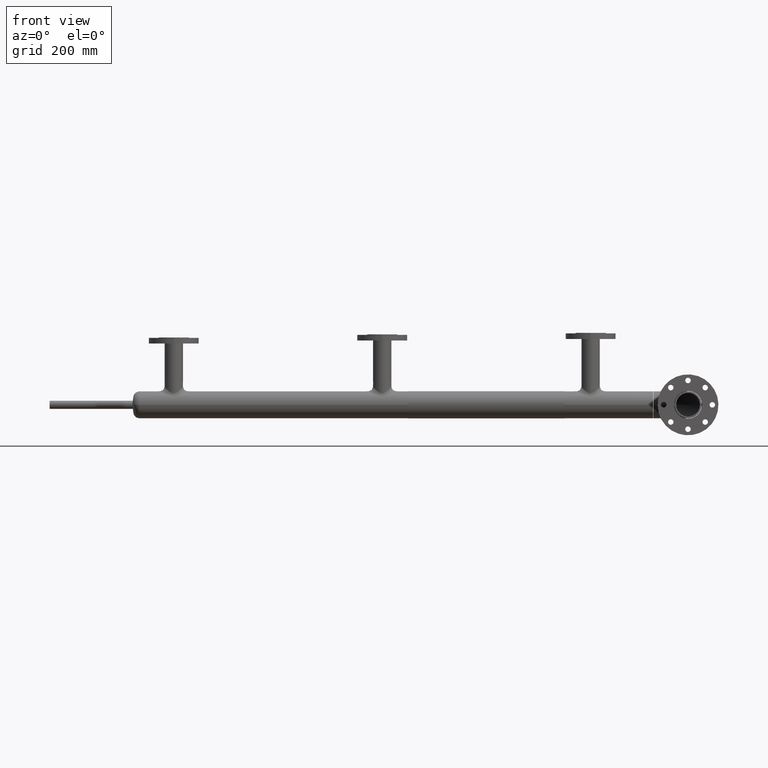
[diagram: clean part render]
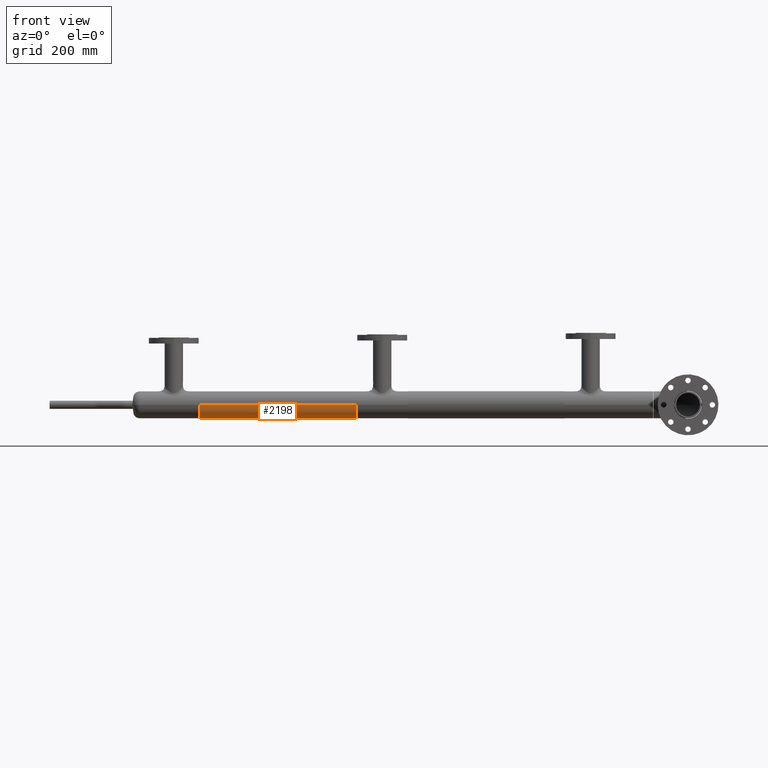
[diagram: same view with one face highlighted and labeled with its STEP entity id]
A machine part, front view. The second image highlights one B-rep face of the part: STEP entity #2198.
In plain terms, the highlighted cylindrical surface (edge-blend (fillet) strip) has radius 44.45 mm, axis along (1, 0, -0).
Its self-contained STEP definition (entity closure, byte-faithful):
#105 = CIRCLE ( 'NONE', #3872, 44.45000000000000995 ) ;
#263 = EDGE_LOOP ( 'NONE', ( #2369, #1996, #2080, #2496 ) ) ;
#697 = DIRECTION ( 'NONE',  ( -1.000000000000000000, -1.361513478024022673E-17, 5.755200308641385394E-66 ) ) ;
#840 = DIRECTION ( 'NONE',  ( 1.000000000000000000, 1.361513478024022673E-17, -5.755200308641385394E-66 ) ) ;
#842 = CARTESIAN_POINT ( 'NONE',  ( -599.3000000000000682, -44.45000000000001705, 5.443555022209986486E-15 ) ) ;
#961 = FACE_OUTER_BOUND ( 'NONE', #263, .T. ) ;
#1063 = DIRECTION ( 'NONE',  ( 1.000000000000000000, 1.361513478024022673E-17, -5.755200308641385394E-66 ) ) ;
#1206 = DIRECTION ( 'NONE',  ( 0.000000000000000000, -1.000000000000000000, 0.000000000000000000 ) ) ;
#1274 = CARTESIAN_POINT ( 'NONE',  ( -599.3000000000000682, -6.992733223131379957E-15, -2.091494006573643760E-63 ) ) ;
#1376 = EDGE_CURVE ( 'NONE', #5988, #4339, #3467, .T. ) ;
#1539 = DIRECTION ( 'NONE',  ( 0.000000000000000000, 1.000000000000000000, 0.000000000000000000 ) ) ;
#1552 = LINE ( 'NONE', #2970, #2837 ) ;
#1610 = CARTESIAN_POINT ( 'NONE',  ( -599.3000000000000682, -6.992733223131379957E-15, -2.091494006573643760E-63 ) ) ;
#1792 = EDGE_CURVE ( 'NONE', #4339, #4357, #105, .T. ) ;
#1851 = AXIS2_PLACEMENT_3D ( 'NONE', #1610, #1063, #1539 ) ;
#1892 = CARTESIAN_POINT ( 'NONE',  ( -85.70000000000000284, -44.45000000000000995, 5.443555022209986486E-15 ) ) ;
#1909 = AXIS2_PLACEMENT_3D ( 'NONE', #1274, #697, #1206 ) ;
#1996 = ORIENTED_EDGE ( 'NONE', *, *, #4942, .F. ) ;
#2080 = ORIENTED_EDGE ( 'NONE', *, *, #1376, .T. ) ;
#2198 = ADVANCED_FACE ( 'NONE', ( #961 ), #2561, .T. ) ;
#2369 = ORIENTED_EDGE ( 'NONE', *, *, #6127, .F. ) ;
#2404 = CARTESIAN_POINT ( 'NONE',  ( -599.3000000000000682, 44.45000000000000284, -2.091494006573643760E-63 ) ) ;
#2496 = ORIENTED_EDGE ( 'NONE', *, *, #1792, .T. ) ;
#2561 = CYLINDRICAL_SURFACE ( 'NONE', #1851, 44.45000000000000995 ) ;
#2798 = CARTESIAN_POINT ( 'NONE',  ( -85.70000000000000284, -1.540743955509788682E-30, -5.047364885091860149E-63 ) ) ;
#2837 = VECTOR ( 'NONE', #6152, 1000.000000000000000 ) ;
#2905 = CARTESIAN_POINT ( 'NONE',  ( -85.70000000000000284, 44.45000000000000995, -3.569429445832751550E-63 ) ) ;
#2970 = CARTESIAN_POINT ( 'NONE',  ( -599.3000000000000682, -44.45000000000001705, 5.443555022209986486E-15 ) ) ;
#3096 = CIRCLE ( 'NONE', #1909, 44.45000000000000995 ) ;
#3467 = LINE ( 'NONE', #2404, #5970 ) ;
#3872 = AXIS2_PLACEMENT_3D ( 'NONE', #2798, #5307, #4699 ) ;
#4339 = VERTEX_POINT ( 'NONE', #2905 ) ;
#4347 = CARTESIAN_POINT ( 'NONE',  ( -599.3000000000000682, 44.45000000000000284, -3.569429445832751550E-63 ) ) ;
#4357 = VERTEX_POINT ( 'NONE', #1892 ) ;
#4472 = VERTEX_POINT ( 'NONE', #842 ) ;
#4699 = DIRECTION ( 'NONE',  ( 0.000000000000000000, -1.000000000000000000, 0.000000000000000000 ) ) ;
#4942 = EDGE_CURVE ( 'NONE', #5988, #4472, #3096, .T. ) ;
#5307 = DIRECTION ( 'NONE',  ( -1.000000000000000000, -1.361513478024022673E-17, 5.755200308641385394E-66 ) ) ;
#5970 = VECTOR ( 'NONE', #840, 1000.000000000000000 ) ;
#5988 = VERTEX_POINT ( 'NONE', #4347 ) ;
#6127 = EDGE_CURVE ( 'NONE', #4472, #4357, #1552, .T. ) ;
#6152 = DIRECTION ( 'NONE',  ( 1.000000000000000000, 1.361513478024022673E-17, -5.755200308641385394E-66 ) ) ;